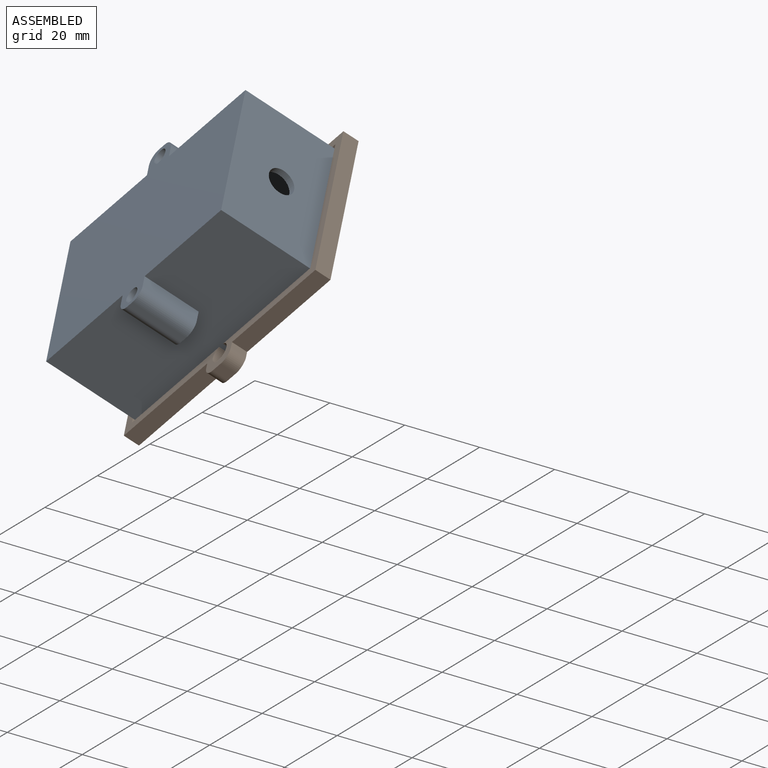
[diagram: assembled view]
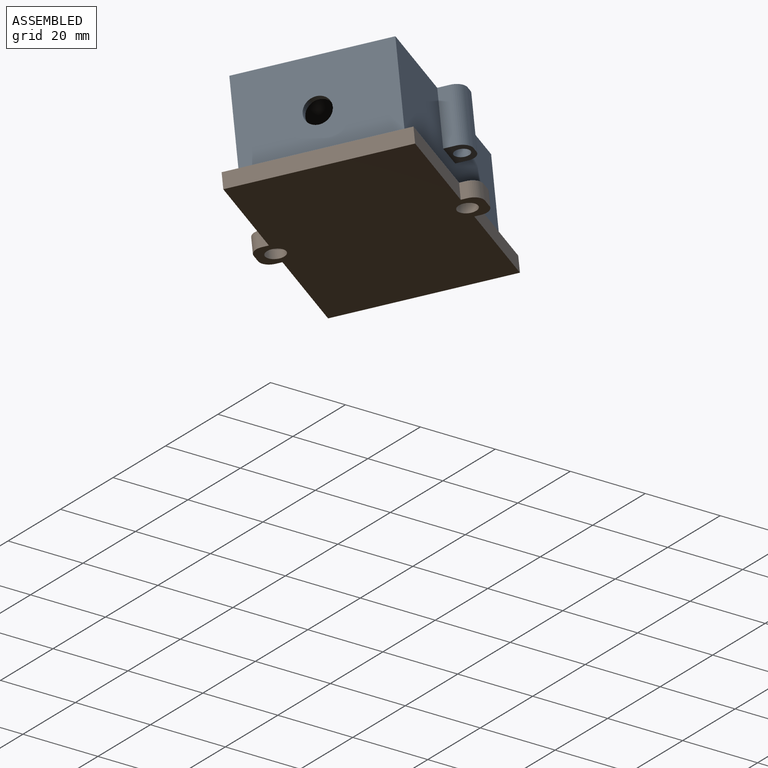
[diagram: assembled view, second angle]
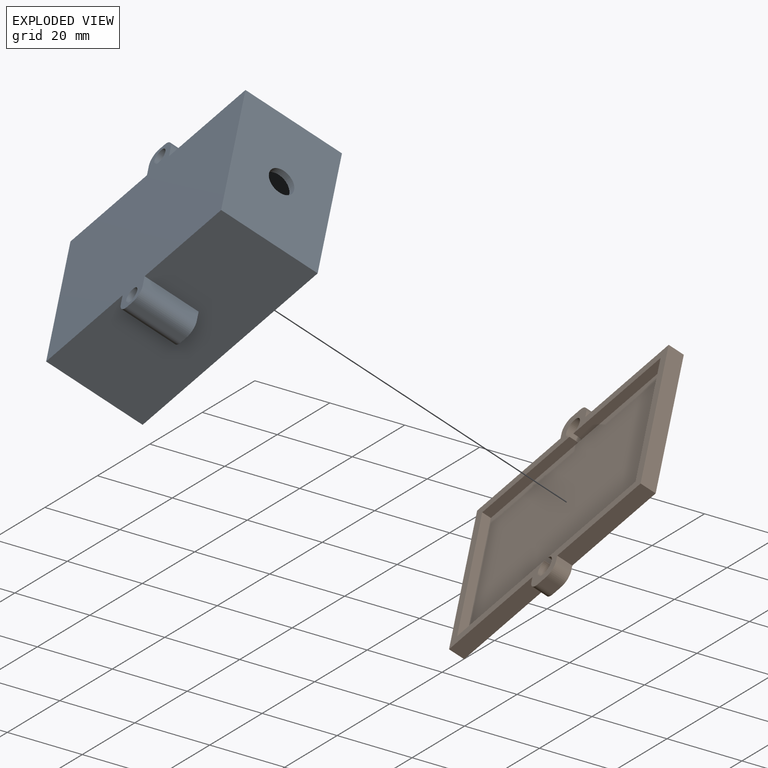
[diagram: exploded view]
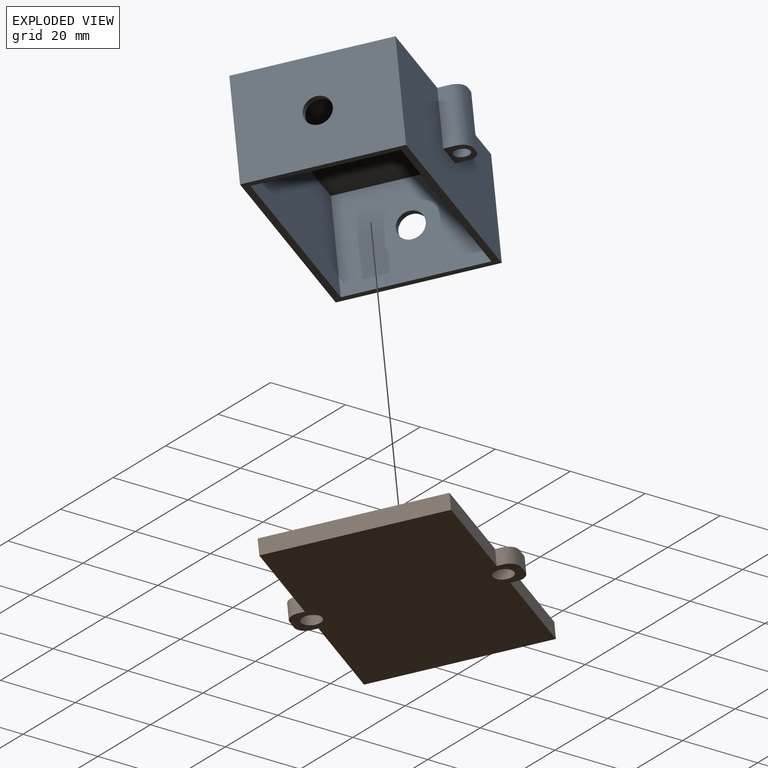
[diagram: exploded view, second angle]
ASSEMBLY  parts=2 mates=2
PART A: 27 faces, bbox 63.6x50.6x26.8 mm
  f0: plane 63.6x26.8mm, normal (0,-1,0), area 1584.5mm2, adj f2,f3,f4,f9,f18,f23,f24
  f1: plane 63.6x26.8mm, normal (0,1,0), area 1584.5mm2, adj f2,f3,f4,f9,f12,f13,f17
  f2: plane 38.6x26.8mm, normal (-1,0,0), area 996mm2, adj f0,f1,f4,f9,f26
  f3: plane 38.6x26.8mm, normal (1,0,0), area 996mm2, adj f0,f1,f4,f9,f25
  f4: plane 63.6x50.6mm, normal (0,0,-1), area 2518.1mm2, adj f0,f1,f2,f3,f11,f12,f13,f14
  f5: plane 35x25mm, normal (1,0,0), area 836.5mm2, adj f6,f8,f9,f10,f26
  f6: plane 60x25mm, normal (0,-1,0), area 1500mm2, adj f5,f7,f9,f10
  f7: plane 35x25mm, normal (-1,0,0), area 836.5mm2, adj f6,f8,f9,f10,f25
  f8: plane 60x25mm, normal (0,1,0), area 1500mm2, adj f5,f7,f9,f10
  f9: plane 63.6x38.6mm, normal (0,0,1), area 355mm2, adj f0,f1,f2,f3,f5,f6,f7,f8
  f10: plane 60x35mm, normal (0,0,1), area 2100mm2, adj f5,f6,f7,f8
  f11: cylinder r=3mm len=15mm, axis (0,0,-1), area 70.7mm2, adj f4,f12,f15,f17
  f12: plane 15x3mm, normal (-1,0,0), area 45mm2, adj f1,f4,f11,f17
  f13: plane 15x3mm, normal (1,0,0), area 45mm2, adj f1,f4,f14,f17
  f14: cylinder r=3mm len=15mm, axis (0,0,-1), area 70.7mm2, adj f4,f13,f15,f17
  f15: plane 15x2mm, normal (0,1,0), area 30mm2, adj f4,f11,f14,f17
  f16: cylinder r=2mm len=15mm, axis (0,0,-1), area 188.5mm2, adj f4,f17
  f17: plane 8x6mm, normal (0,0,1), area 31.6mm2, adj f1,f11,f12,f13,f14,f15,f16
  f18: plane 15x3mm, normal (-1,0,0), area 45mm2, adj f0,f4,f19,f24
  f19: cylinder r=3mm len=15mm, axis (0,0,-1), area 70.7mm2, adj f4,f18,f20,f24
  f20: plane 15x2mm, normal (0,-1,0), area 30mm2, adj f4,f19,f21,f24
  f21: cylinder r=3mm len=15mm, axis (0,0,-1), area 70.7mm2, adj f4,f20,f23,f24
  f22: cylinder r=2mm len=15mm, axis (0,0,-1), area 188.5mm2, adj f4,f24
  f23: plane 15x3mm, normal (1,0,0), area 45mm2, adj f0,f4,f21,f24
  f24: plane 8x6mm, normal (0,0,1), area 31.6mm2, adj f0,f18,f19,f20,f21,f22,f23
  f25: cylinder r=3.5mm len=7mm, axis (1,0,0), area 39.6mm2, adj f3,f7
  f26: cylinder r=3.5mm len=7mm, axis (1,0,0), area 39.6mm2, adj f2,f5
PART B: 27 faces, bbox 69.6x53.8x4.2 mm
  f0: plane 31.7x2.4mm, normal (0,-1,0), area 76.1mm2, adj f1,f23,f24,f25
  f1: cylinder r=2.5mm len=5mm, axis (0,0,-1), area 62.6mm2, adj f0,f2,f24,f25,f26
  f2: plane 31.7x2.4mm, normal (0,-1,0), area 76.1mm2, adj f1,f3,f24,f25
  f3: plane 39.8x2.4mm, normal (-1,0,0), area 95.5mm2, adj f2,f4,f24,f25
  f4: plane 31.7x2.4mm, normal (0,1,0), area 76.1mm2, adj f3,f5,f24,f25
  f5: cylinder r=2.5mm len=5mm, axis (0,0,-1), area 62.6mm2, adj f4,f6,f24,f25,f26
  f6: plane 31.7x2.4mm, normal (0,1,0), area 76.1mm2, adj f5,f23,f24,f25
  f7: plane 4.2x1.6mm, normal (-1,0,0), area 6.7mm2, adj f8,f22,f24,f26
  f8: plane 30.3x4.2mm, normal (0,1,0), area 127.3mm2, adj f7,f9,f24,f26
  f9: plane 44.6x4.2mm, normal (-1,0,0), area 187.3mm2, adj f8,f10,f24,f26
  f10: plane 30.3x4.2mm, normal (0,-1,0), area 127.3mm2, adj f9,f11,f24,f26
  f11: plane 4.2x1.6mm, normal (-1,0,0), area 6.7mm2, adj f10,f12,f24,f26
  f12: cylinder r=3mm len=4.2mm, axis (0,0,-1), area 19.8mm2, adj f11,f13,f24,f26
  f13: plane 4.2x3mm, normal (0,-1,0), area 12.6mm2, adj f12,f14,f24,f26
  f14: cylinder r=3mm len=4.2mm, axis (0,0,-1), area 19.8mm2, adj f13,f15,f24,f26
  f15: plane 4.2x1.6mm, normal (1,0,0), area 6.7mm2, adj f14,f16,f24,f26
  f16: plane 30.3x4.2mm, normal (0,-1,0), area 127.3mm2, adj f15,f17,f24,f26
  f17: plane 44.6x4.2mm, normal (1,0,0), area 187.3mm2, adj f16,f18,f24,f26
  f18: plane 30.3x4.2mm, normal (0,1,0), area 127.3mm2, adj f17,f19,f24,f26
  f19: plane 4.2x1.6mm, normal (1,0,0), area 6.7mm2, adj f18,f20,f24,f26
  f20: cylinder r=3mm len=4.2mm, axis (0,0,-1), area 19.8mm2, adj f19,f21,f24,f26
  f21: plane 4.2x3mm, normal (0,1,0), area 12.6mm2, adj f20,f22,f24,f26
  f22: cylinder r=3mm len=4.2mm, axis (0,0,-1), area 19.8mm2, adj f7,f21,f24,f26
  f23: plane 39.8x2.4mm, normal (1,0,0), area 95.5mm2, adj f0,f6,f24,f25
  f24: plane 69.6x53.8mm, normal (0,0,1), area 561.1mm2, adj f0,f1,f2,f3,f4,f5,f6,f7
  f25: plane 64.8x39.8mm, normal (0,0,1), area 2578.9mm2, adj f0,f1,f2,f3,f4,f5,f6,f23
  f26: plane 69.6x53.8mm, normal (0,0,-1), area 3140mm2, adj f1,f5,f7,f8,f9,f10,f11,f12
PLACE A rot(axis=(-0.15,0.96,0.25),136.2deg) t=(120.51,-77.8,48.93)mm
PLACE B rot(axis=(0.51,-0.81,0.31),55.2deg) t=(110.02,-53.72,15.45)mm
MATE slider B.f5 <-> A.f22  axis (0.59,0.52,-0.61) through (119.12,-69.19,8.12)mm
MATE planar A.f9 <-> B.f25  axis (0.59,0.52,-0.61) through (116,-66.06,10.72)mm
